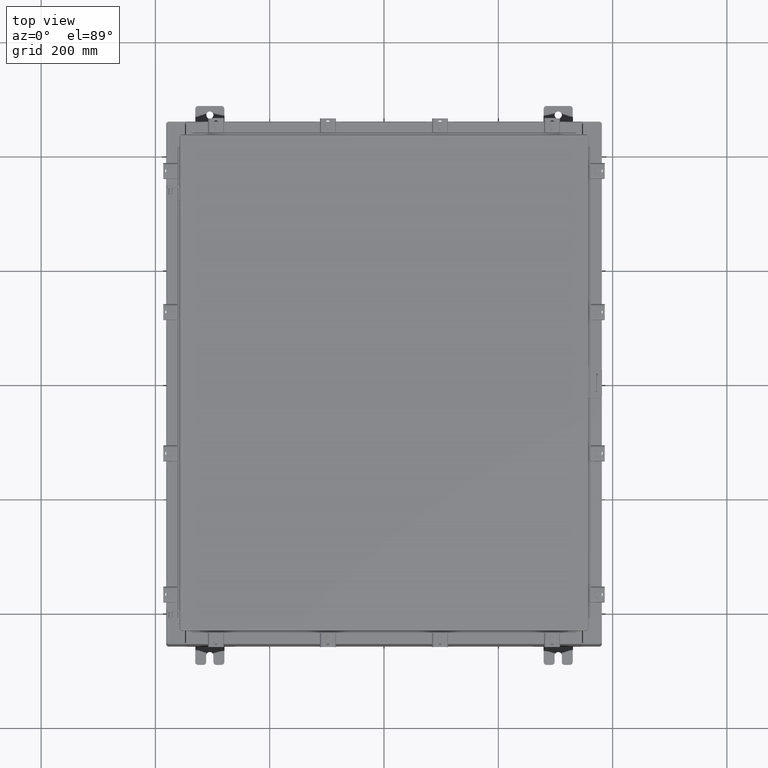
[diagram: clean part render]
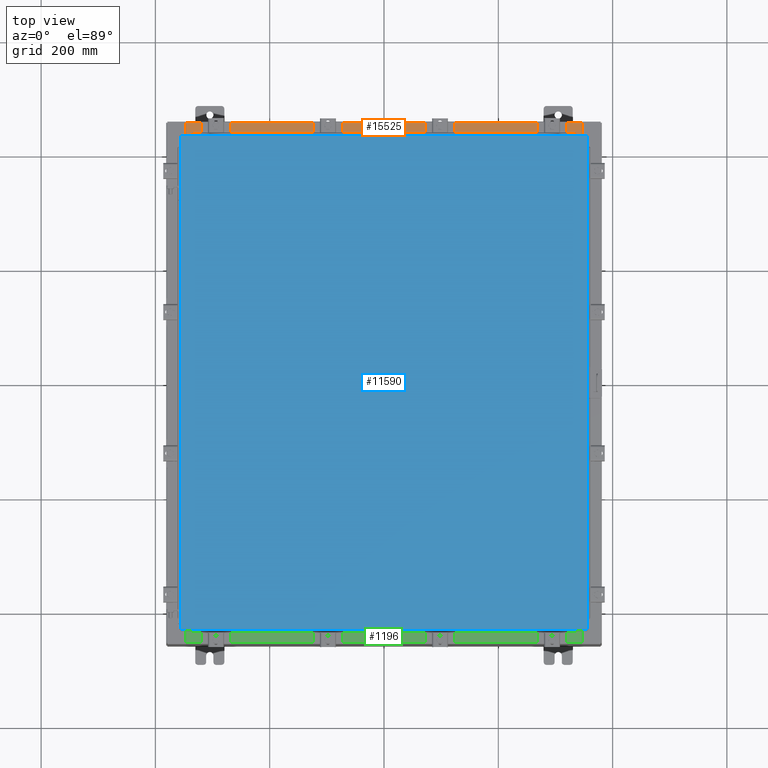
[diagram: same view with three faces highlighted in distinct colors, each labeled with its STEP entity id]
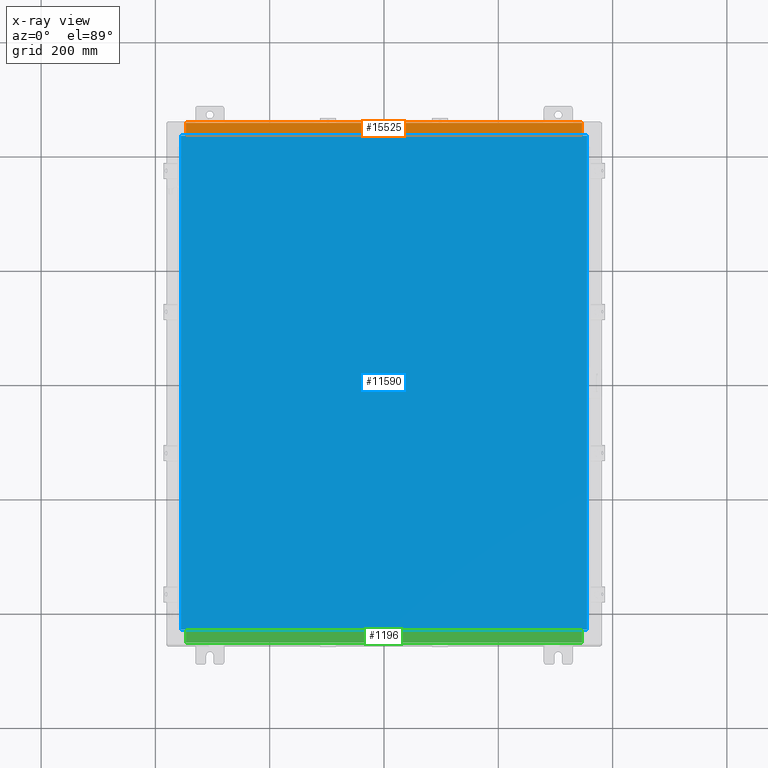
[diagram: x-ray of the same camera — body ghosted, the three highlighted faces saturated]
A machine part, top view with three faces highlighted in distinct colors.
The next image is the same camera in x-ray (body ghosted, the three faces saturated) — at least one of them is partly hidden behind the body in this view.
Their STEP definitions:

[orange] entity #15525 — the highlighted planar face has unit normal (0, 0, 1).
#324 = ORIENTED_EDGE ( 'NONE', *, *, #19102, .F. ) ;
#442 = ORIENTED_EDGE ( 'NONE', *, *, #5235, .F. ) ;
#482 = CARTESIAN_POINT ( 'NONE',  ( 13.63719999999999800, -1.300299999999999800, 5.000000000000004400 ) ) ;
#649 = VECTOR ( 'NONE', #4086, 39.37007874015748100 ) ;
#1070 = DIRECTION ( 'NONE',  ( 0.0000000000000000000, 3.566381192773190000E-015, 1.000000000000000000 ) ) ;
#1648 = DIRECTION ( 'NONE',  ( -0.0000000000000000000, 1.000000000000000000, -3.566381192773190000E-015 ) ) ;
#1701 = LINE ( 'NONE', #5845, #14997 ) ;
#1801 = FACE_OUTER_BOUND ( 'NONE', #12909, .T. ) ;
#2657 = AXIS2_PLACEMENT_3D ( 'NONE', #6219, #1070, #13213 ) ;
#3088 = VERTEX_POINT ( 'NONE', #16180 ) ;
#4086 = DIRECTION ( 'NONE',  ( -1.000000000000000000, 0.0000000000000000000, 0.0000000000000000000 ) ) ;
#4183 = VERTEX_POINT ( 'NONE', #18555 ) ;
#4230 = CARTESIAN_POINT ( 'NONE',  ( 13.63719999999999800, -1.287299999999999900, 5.000000000000002700 ) ) ;
#5235 = EDGE_CURVE ( 'NONE', #17466, #10965, #16954, .T. ) ;
#5845 = CARTESIAN_POINT ( 'NONE',  ( 3.513669507588167300E-018, -0.08770000000000081900, 5.000000000000000000 ) ) ;
#5931 = DIRECTION ( 'NONE',  ( -1.000000000000000000, -4.006464660875052000E-017, 1.428858021605520200E-031 ) ) ;
#5965 = LINE ( 'NONE', #22430, #14665 ) ;
#6219 = CARTESIAN_POINT ( 'NONE',  ( 0.0000000000000000000, 1.782631094477737600E-014, 5.000000000000000000 ) ) ;
#6516 = EDGE_CURVE ( 'NONE', #3088, #4183, #1701, .T. ) ;
#7082 = VECTOR ( 'NONE', #19535, 39.37007874015748100 ) ;
#8475 = CARTESIAN_POINT ( 'NONE',  ( -13.63720000000000400, -1.287299999999999200, 5.000000000000004400 ) ) ;
#10965 = VERTEX_POINT ( 'NONE', #8475 ) ;
#10983 = EDGE_CURVE ( 'NONE', #10965, #4183, #5965, .T. ) ;
#11429 = PLANE ( 'NONE',  #2657 ) ;
#12909 = EDGE_LOOP ( 'NONE', ( #16691, #442, #324, #19195 ) ) ;
#13213 = DIRECTION ( 'NONE',  ( 0.0000000000000000000, -1.000000000000000000, 3.566381192773190000E-015 ) ) ;
#14665 = VECTOR ( 'NONE', #1648, 39.37007874015748100 ) ;
#14997 = VECTOR ( 'NONE', #5931, 39.37007874015748100 ) ;
#15525 = ADVANCED_FACE ( 'NONE', ( #1801 ), #11429, .T. ) ;
#16180 = CARTESIAN_POINT ( 'NONE',  ( 13.63719999999999800, -0.08770000000000047200, 5.000000000000000000 ) ) ;
#16458 = CARTESIAN_POINT ( 'NONE',  ( 13.63719999999999800, -1.287299999999999900, 5.000000000000004400 ) ) ;
#16691 = ORIENTED_EDGE ( 'NONE', *, *, #10983, .F. ) ;
#16954 = LINE ( 'NONE', #4230, #649 ) ;
#17466 = VERTEX_POINT ( 'NONE', #16458 ) ;
#18555 = CARTESIAN_POINT ( 'NONE',  ( -13.63720000000000400, -0.08770000000000081900, 5.000000000000000000 ) ) ;
#19102 = EDGE_CURVE ( 'NONE', #3088, #17466, #20898, .T. ) ;
#19195 = ORIENTED_EDGE ( 'NONE', *, *, #6516, .T. ) ;
#19535 = DIRECTION ( 'NONE',  ( -0.0000000000000000000, -1.000000000000000000, 3.566381192773190000E-015 ) ) ;
#20898 = LINE ( 'NONE', #482, #7082 ) ;
#22430 = CARTESIAN_POINT ( 'NONE',  ( -13.63720000000000400, -0.07469999999999973900, 5.000000000000000000 ) ) ;

[blue] entity #11590 — the highlighted planar face has unit normal (0, 0, -1).
#1687 = LINE ( 'NONE', #16063, #10367 ) ;
#1965 = DIRECTION ( 'NONE',  ( 1.000000000000000000, -0.0000000000000000000, -0.0000000000000000000 ) ) ;
#2251 = LINE ( 'NONE', #12751, #15575 ) ;
#3919 = VERTEX_POINT ( 'NONE', #11136 ) ;
#4506 = CARTESIAN_POINT ( 'NONE',  ( 0.0000000000000000000, 0.0000000000000000000, 0.0000000000000000000 ) ) ;
#5408 = ORIENTED_EDGE ( 'NONE', *, *, #17368, .T. ) ;
#6665 = VERTEX_POINT ( 'NONE', #21559 ) ;
#7378 = CARTESIAN_POINT ( 'NONE',  ( 13.99029999999999600, 17.00629999999999600, 8.878505979408856000E-016 ) ) ;
#9127 = LINE ( 'NONE', #10599, #22429 ) ;
#9757 = PLANE ( 'NONE',  #12750 ) ;
#10188 = DIRECTION ( 'NONE',  ( 0.0000000000000000000, 1.000000000000000000, 0.0000000000000000000 ) ) ;
#10367 = VECTOR ( 'NONE', #17814, 39.37007874015748100 ) ;
#10405 = EDGE_LOOP ( 'NONE', ( #15331, #20026, #20337, #5408 ) ) ;
#10599 = CARTESIAN_POINT ( 'NONE',  ( -13.99029999999999800, -17.00630000000000300, -2.048885995248197400E-016 ) ) ;
#10781 = LINE ( 'NONE', #22339, #14892 ) ;
#11136 = CARTESIAN_POINT ( 'NONE',  ( -13.99030000000000000, 17.00630000000000000, -2.048885995248197400E-016 ) ) ;
#11454 = DIRECTION ( 'NONE',  ( -1.000000000000000000, 0.0000000000000000000, -0.0000000000000000000 ) ) ;
#11590 = ADVANCED_FACE ( 'NONE', ( #15174 ), #9757, .F. ) ;
#12750 = AXIS2_PLACEMENT_3D ( 'NONE', #4506, #21876, #11454 ) ;
#12751 = CARTESIAN_POINT ( 'NONE',  ( -13.99030000000000000, 17.00630000000000000, -2.048885995248197400E-016 ) ) ;
#14451 = EDGE_CURVE ( 'NONE', #15718, #16684, #10781, .T. ) ;
#14477 = DIRECTION ( 'NONE',  ( 0.0000000000000000000, -1.000000000000000000, 0.0000000000000000000 ) ) ;
#14892 = VECTOR ( 'NONE', #10188, 39.37007874015748100 ) ;
#15174 = FACE_OUTER_BOUND ( 'NONE', #10405, .T. ) ;
#15328 = CARTESIAN_POINT ( 'NONE',  ( 13.99029999999999800, -17.00630000000000700, -2.048885995248197400E-016 ) ) ;
#15331 = ORIENTED_EDGE ( 'NONE', *, *, #15979, .T. ) ;
#15575 = VECTOR ( 'NONE', #14477, 39.37007874015748100 ) ;
#15718 = VERTEX_POINT ( 'NONE', #15328 ) ;
#15979 = EDGE_CURVE ( 'NONE', #6665, #15718, #9127, .T. ) ;
#16063 = CARTESIAN_POINT ( 'NONE',  ( 13.99029999999999600, 17.00629999999999600, 8.878505979408856000E-016 ) ) ;
#16684 = VERTEX_POINT ( 'NONE', #7378 ) ;
#17368 = EDGE_CURVE ( 'NONE', #3919, #6665, #2251, .T. ) ;
#17814 = DIRECTION ( 'NONE',  ( -1.000000000000000000, -0.0000000000000000000, -0.0000000000000000000 ) ) ;
#18444 = EDGE_CURVE ( 'NONE', #16684, #3919, #1687, .T. ) ;
#20026 = ORIENTED_EDGE ( 'NONE', *, *, #14451, .T. ) ;
#20337 = ORIENTED_EDGE ( 'NONE', *, *, #18444, .T. ) ;
#21559 = CARTESIAN_POINT ( 'NONE',  ( -13.99029999999999800, -17.00630000000000300, -2.048885995248197400E-016 ) ) ;
#21876 = DIRECTION ( 'NONE',  ( 0.0000000000000000000, 0.0000000000000000000, -1.000000000000000000 ) ) ;
#22339 = CARTESIAN_POINT ( 'NONE',  ( 13.99029999999999800, -17.00630000000000700, -2.048885995248197400E-016 ) ) ;
#22429 = VECTOR ( 'NONE', #1965, 39.37007874015748100 ) ;

[green] entity #1196 — the highlighted planar face has unit normal (-0, -0, 1).
#1196 = ADVANCED_FACE ( 'NONE', ( #4490 ), #9033, .T. ) ;
#2581 = CARTESIAN_POINT ( 'NONE',  ( 13.63719999999999800, -1.287299999999999900, 5.000000000000002700 ) ) ;
#3139 = VECTOR ( 'NONE', #6707, 39.37007874015748100 ) ;
#3141 = AXIS2_PLACEMENT_3D ( 'NONE', #9271, #9199, #9094 ) ;
#3160 = ORIENTED_EDGE ( 'NONE', *, *, #8307, .T. ) ;
#3219 = CARTESIAN_POINT ( 'NONE',  ( 3.513669507588167300E-018, -0.08770000000000081900, 5.000000000000000000 ) ) ;
#3352 = CARTESIAN_POINT ( 'NONE',  ( -13.63720000000000400, -0.08770000000000081900, 5.000000000000000000 ) ) ;
#3779 = EDGE_LOOP ( 'NONE', ( #22111, #9992, #11191, #3160 ) ) ;
#3925 = LINE ( 'NONE', #2581, #4474 ) ;
#4474 = VECTOR ( 'NONE', #19891, 39.37007874015748100 ) ;
#4490 = FACE_OUTER_BOUND ( 'NONE', #3779, .T. ) ;
#4756 = DIRECTION ( 'NONE',  ( -0.0000000000000000000, 1.000000000000000000, -3.566381192773190000E-015 ) ) ;
#5127 = VERTEX_POINT ( 'NONE', #8989 ) ;
#5486 = EDGE_CURVE ( 'NONE', #18345, #12403, #17230, .T. ) ;
#6707 = DIRECTION ( 'NONE',  ( -1.000000000000000000, -4.006464660875052000E-017, 1.428858021605520200E-031 ) ) ;
#7389 = EDGE_CURVE ( 'NONE', #5127, #12775, #13617, .T. ) ;
#7753 = LINE ( 'NONE', #3219, #3139 ) ;
#8307 = EDGE_CURVE ( 'NONE', #18345, #12775, #7753, .T. ) ;
#8458 = VECTOR ( 'NONE', #4756, 39.37007874015748100 ) ;
#8865 = EDGE_CURVE ( 'NONE', #12403, #5127, #3925, .T. ) ;
#8989 = CARTESIAN_POINT ( 'NONE',  ( -13.63720000000000400, -1.287299999999999200, 5.000000000000004400 ) ) ;
#9033 = PLANE ( 'NONE',  #3141 ) ;
#9094 = DIRECTION ( 'NONE',  ( 0.0000000000000000000, -1.000000000000000000, 3.566381192773190000E-015 ) ) ;
#9199 = DIRECTION ( 'NONE',  ( 0.0000000000000000000, 3.566381192773190000E-015, 1.000000000000000000 ) ) ;
#9271 = CARTESIAN_POINT ( 'NONE',  ( 0.0000000000000000000, 1.782631094477737600E-014, 5.000000000000000000 ) ) ;
#9992 = ORIENTED_EDGE ( 'NONE', *, *, #8865, .F. ) ;
#11191 = ORIENTED_EDGE ( 'NONE', *, *, #5486, .F. ) ;
#12026 = CARTESIAN_POINT ( 'NONE',  ( 13.63719999999999800, -1.287299999999999900, 5.000000000000004400 ) ) ;
#12403 = VERTEX_POINT ( 'NONE', #12026 ) ;
#12775 = VERTEX_POINT ( 'NONE', #3352 ) ;
#13617 = LINE ( 'NONE', #22143, #8458 ) ;
#17230 = LINE ( 'NONE', #21701, #21828 ) ;
#18345 = VERTEX_POINT ( 'NONE', #19283 ) ;
#19283 = CARTESIAN_POINT ( 'NONE',  ( 13.63719999999999800, -0.08770000000000047200, 5.000000000000000000 ) ) ;
#19891 = DIRECTION ( 'NONE',  ( -1.000000000000000000, 0.0000000000000000000, 0.0000000000000000000 ) ) ;
#21701 = CARTESIAN_POINT ( 'NONE',  ( 13.63719999999999800, -1.300299999999999800, 5.000000000000004400 ) ) ;
#21769 = DIRECTION ( 'NONE',  ( -0.0000000000000000000, -1.000000000000000000, 3.566381192773190000E-015 ) ) ;
#21828 = VECTOR ( 'NONE', #21769, 39.37007874015748100 ) ;
#22111 = ORIENTED_EDGE ( 'NONE', *, *, #7389, .F. ) ;
#22143 = CARTESIAN_POINT ( 'NONE',  ( -13.63720000000000400, -0.07469999999999973900, 5.000000000000000000 ) ) ;